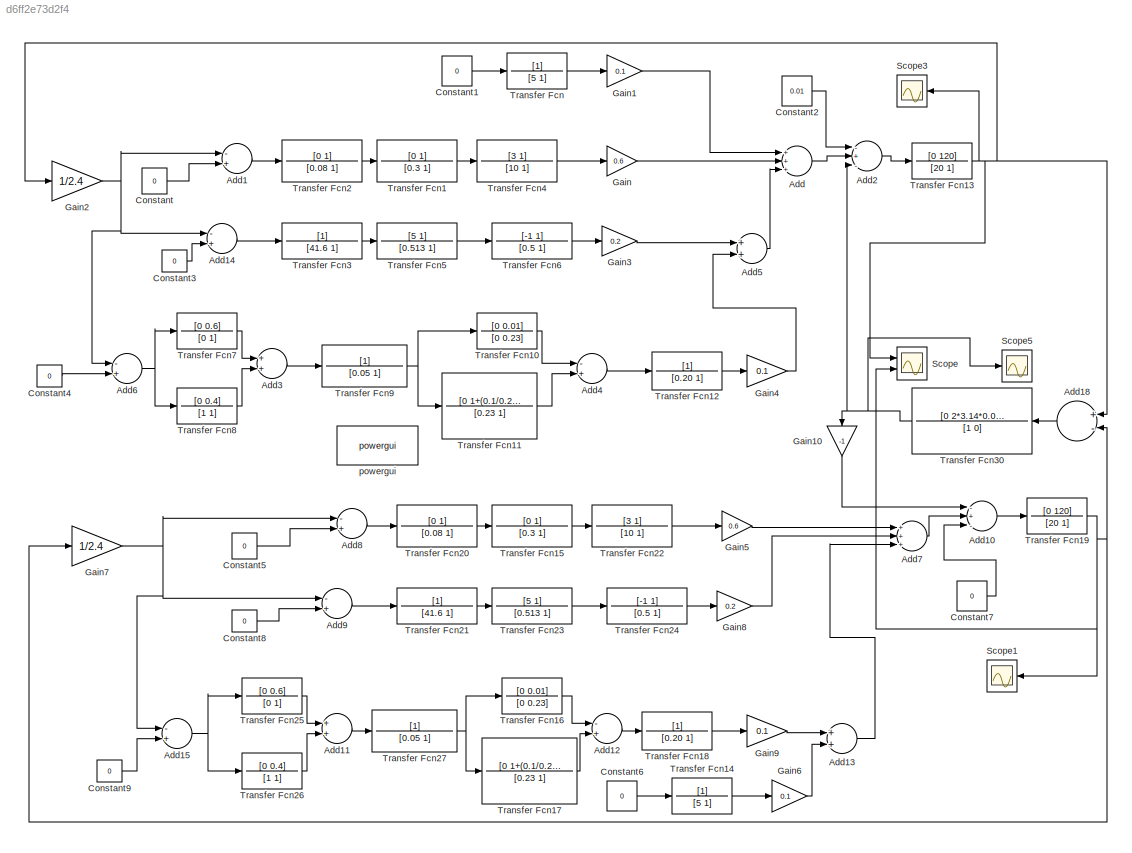
MODEL slx_d6ff2e73d2f4
KIND model
CONFIG AbsTol = auto
CONFIG EnableMultiTasking = off
CONFIG FixedStep = auto
CONFIG MaxStep = 1e-4
CONFIG MinStep = auto
CONFIG RelTol = 1e-3
CONFIG SampleTimeConstraint = Unconstrained
CONFIG Solver = VariableStepAuto
CONFIG SolverName = VariableStepAuto
CONFIG StartTime = 0.0
CONFIG StopTime = 40
BLOCK [Sum] Add
  InputSameDT = off
  Inputs = +++
  OutDataTypeStr = Inherit: Inherit via internal rule
  Ports = [3, 1]
  SaturateOnIntegerOverflow = off
BLOCK [Sum] Add1
  InputSameDT = off
  Inputs = -+
  OutDataTypeStr = Inherit: Inherit via internal rule
  Ports = [2, 1]
  SaturateOnIntegerOverflow = off
BLOCK [Sum] Add10
  InputSameDT = off
  Inputs = -+-
  OutDataTypeStr = Inherit: Inherit via internal rule
  Ports = [3, 1]
  SaturateOnIntegerOverflow = off
BLOCK [Sum] Add11
  InputSameDT = off
  OutDataTypeStr = Inherit: Inherit via internal rule
  Ports = [2, 1]
  SaturateOnIntegerOverflow = off
BLOCK [Sum] Add12
  InputSameDT = off
  Inputs = -+
  OutDataTypeStr = Inherit: Inherit via internal rule
  Ports = [2, 1]
  SaturateOnIntegerOverflow = off
BLOCK [Sum] Add13
  InputSameDT = off
  OutDataTypeStr = Inherit: Inherit via internal rule
  Ports = [2, 1]
  SaturateOnIntegerOverflow = off
BLOCK [Sum] Add14
  InputSameDT = off
  Inputs = -+
  OutDataTypeStr = Inherit: Inherit via internal rule
  Ports = [2, 1]
  SaturateOnIntegerOverflow = off
BLOCK [Sum] Add15
  InputSameDT = off
  Inputs = -+
  OutDataTypeStr = Inherit: Inherit via internal rule
  Ports = [2, 1]
  SaturateOnIntegerOverflow = off
BLOCK [Sum] Add18
  InputSameDT = off
  Inputs = +-
  OutDataTypeStr = Inherit: Inherit via internal rule
  Ports = [2, 1]
  SaturateOnIntegerOverflow = off
BLOCK [Sum] Add2
  InputSameDT = off
  Inputs = -+-
  OutDataTypeStr = Inherit: Inherit via internal rule
  Ports = [3, 1]
  SaturateOnIntegerOverflow = off
BLOCK [Sum] Add3
  InputSameDT = off
  OutDataTypeStr = Inherit: Inherit via internal rule
  Ports = [2, 1]
  SaturateOnIntegerOverflow = off
BLOCK [Sum] Add4
  InputSameDT = off
  Inputs = -+
  OutDataTypeStr = Inherit: Inherit via internal rule
  Ports = [2, 1]
  SaturateOnIntegerOverflow = off
BLOCK [Sum] Add5
  InputSameDT = off
  OutDataTypeStr = Inherit: Inherit via internal rule
  Ports = [2, 1]
  SaturateOnIntegerOverflow = off
BLOCK [Sum] Add6
  InputSameDT = off
  Inputs = -+
  OutDataTypeStr = Inherit: Inherit via internal rule
  Ports = [2, 1]
  SaturateOnIntegerOverflow = off
BLOCK [Sum] Add7
  InputSameDT = off
  Inputs = +++
  OutDataTypeStr = Inherit: Inherit via internal rule
  Ports = [3, 1]
  SaturateOnIntegerOverflow = off
BLOCK [Sum] Add8
  InputSameDT = off
  Inputs = -+
  OutDataTypeStr = Inherit: Inherit via internal rule
  Ports = [2, 1]
  SaturateOnIntegerOverflow = off
BLOCK [Sum] Add9
  InputSameDT = off
  Inputs = -+
  OutDataTypeStr = Inherit: Inherit via internal rule
  Ports = [2, 1]
  SaturateOnIntegerOverflow = off
BLOCK [Constant] Constant
  Value = 0
BLOCK [Constant] Constant1
  Value = 0
BLOCK [Constant] Constant2
  Value = 0.01
BLOCK [Constant] Constant3
  Value = 0
BLOCK [Constant] Constant4
  Value = 0
BLOCK [Constant] Constant5
  Value = 0
BLOCK [Constant] Constant6
  Value = 0
BLOCK [Constant] Constant7
  Value = 0
BLOCK [Constant] Constant8
  Value = 0
BLOCK [Constant] Constant9
  Value = 0
BLOCK [Gain] Gain
  Gain = 0.6
  OutDataTypeStr = Inherit: Inherit via internal rule
  ParamDataTypeStr = Inherit: Inherit via internal rule
  SaturateOnIntegerOverflow = off
BLOCK [Gain] Gain1
  Gain = 0.1
  OutDataTypeStr = Inherit: Inherit via internal rule
  ParamDataTypeStr = Inherit: Inherit via internal rule
  SaturateOnIntegerOverflow = off
BLOCK [Gain] Gain10
  Gain = -1
  OutDataTypeStr = Inherit: Inherit via internal rule
  ParamDataTypeStr = Inherit: Inherit via internal rule
  SaturateOnIntegerOverflow = off
BLOCK [Gain] Gain2
  Gain = 1/2.4
  OutDataTypeStr = Inherit: Inherit via internal rule
  ParamDataTypeStr = Inherit: Inherit via internal rule
  SaturateOnIntegerOverflow = off
BLOCK [Gain] Gain3
  Gain = 0.2
  OutDataTypeStr = Inherit: Inherit via internal rule
  ParamDataTypeStr = Inherit: Inherit via internal rule
  SaturateOnIntegerOverflow = off
BLOCK [Gain] Gain4
  Gain = 0.1
  OutDataTypeStr = Inherit: Inherit via internal rule
  ParamDataTypeStr = Inherit: Inherit via internal rule
  SaturateOnIntegerOverflow = off
BLOCK [Gain] Gain5
  Gain = 0.6
  OutDataTypeStr = Inherit: Inherit via internal rule
  ParamDataTypeStr = Inherit: Inherit via internal rule
  SaturateOnIntegerOverflow = off
BLOCK [Gain] Gain6
  Gain = 0.1
  OutDataTypeStr = Inherit: Inherit via internal rule
  ParamDataTypeStr = Inherit: Inherit via internal rule
  SaturateOnIntegerOverflow = off
BLOCK [Gain] Gain7
  Gain = 1/2.4
  OutDataTypeStr = Inherit: Inherit via internal rule
  ParamDataTypeStr = Inherit: Inherit via internal rule
  SaturateOnIntegerOverflow = off
BLOCK [Gain] Gain8
  Gain = 0.2
  OutDataTypeStr = Inherit: Inherit via internal rule
  ParamDataTypeStr = Inherit: Inherit via internal rule
  SaturateOnIntegerOverflow = off
BLOCK [Gain] Gain9
  Gain = 0.1
  OutDataTypeStr = Inherit: Inherit via internal rule
  ParamDataTypeStr = Inherit: Inherit via internal rule
  SaturateOnIntegerOverflow = off
BLOCK [Scope] Scope
  NumInputPorts = 2
  Ports = [2]
  ScopeSpecificationString = Simulink.scopes.TimeScopeBlockCfg('CurrentConfiguration', extmgr.ConfigurationSet(extmgr.Configuration('Core','General UI',true),extmgr.Configuration('Core','Source UI',true),extmgr.Configuration('Sources','WiredSimulink',true,'DataLoggingVariableName','ScopeData1'),extmgr.Configuration('Visuals','Time Domain',true,'SerializedDisplays',{struct('MinYLimReal','-0.04305','MaxYLimReal','0.00478','YLab...<+2053ch>
BLOCK [Scope] Scope1
  NumInputPorts = 1
  Ports = [1]
  ScopeSpecificationString = Simulink.scopes.TimeScopeBlockCfg('CurrentConfiguration', extmgr.ConfigurationSet(extmgr.Configuration('Core','General UI',true),extmgr.Configuration('Core','Source UI',true),extmgr.Configuration('Sources','WiredSimulink',true,'DataLoggingVariableName','ScopeData2'),extmgr.Configuration('Visuals','Time Domain',true,'SerializedDisplays',{struct('MinYLimReal','-0.13273','MaxYLimReal','1.19461','YLab...<+1373ch>
BLOCK [Scope] Scope3
  NumInputPorts = 1
  Ports = [1]
  ScopeSpecificationString = Simulink.scopes.TimeScopeBlockCfg('CurrentConfiguration', extmgr.ConfigurationSet(extmgr.Configuration('Core','General UI',true),extmgr.Configuration('Core','Source UI',true),extmgr.Configuration('Sources','WiredSimulink',true,'DataLoggingVariableName','ScopeData4'),extmgr.Configuration('Visuals','Time Domain',true,'SerializedDisplays',{struct('MinYLimReal','-0.16996','MaxYLimReal','1.16902','YLab...<+1373ch>
BLOCK [Scope] Scope5
  NumInputPorts = 1
  Ports = [1]
  ScopeSpecificationString = Simulink.scopes.TimeScopeBlockCfg('CurrentConfiguration', extmgr.ConfigurationSet(extmgr.Configuration('Core','General UI',true),extmgr.Configuration('Core','Source UI',true),extmgr.Configuration('Sources','WiredSimulink',true,'DataLoggingVariableName','ScopeData1'),extmgr.Configuration('Visuals','Time Domain',true,'SerializedDisplays',{struct('MinYLimReal','-0.00884','MaxYLimReal','0.00098','YLab...<+1373ch>
BLOCK [TransferFcn] Transfer Fcn
  Denominator = [5 1]
BLOCK [TransferFcn] Transfer Fcn1
  Denominator = [0.3 1]
  Numerator = [0 1]
BLOCK [TransferFcn] Transfer Fcn10
  Denominator = [0 0.23]
  Numerator = [0 0.01]
BLOCK [TransferFcn] Transfer Fcn11
  Denominator = [0.23 1]
  Numerator = [0 1+(0.1/0.23)]
BLOCK [TransferFcn] Transfer Fcn12
  Denominator = [0.20 1]
BLOCK [TransferFcn] Transfer Fcn13
  Denominator = [20 1]
  Numerator = [0 120]
BLOCK [TransferFcn] Transfer Fcn14
  Denominator = [5 1]
BLOCK [TransferFcn] Transfer Fcn15
  Denominator = [0.3 1]
  Numerator = [0 1]
BLOCK [TransferFcn] Transfer Fcn16
  Denominator = [0 0.23]
  Numerator = [0 0.01]
BLOCK [TransferFcn] Transfer Fcn17
  Denominator = [0.23 1]
  Numerator = [0 1+(0.1/0.23)]
BLOCK [TransferFcn] Transfer Fcn18
  Denominator = [0.20 1]
BLOCK [TransferFcn] Transfer Fcn19
  Denominator = [20 1]
  Numerator = [0 120]
BLOCK [TransferFcn] Transfer Fcn2
  Denominator = [0.08 1]
  Numerator = [0 1]
BLOCK [TransferFcn] Transfer Fcn20
  Denominator = [0.08 1]
  Numerator = [0 1]
BLOCK [TransferFcn] Transfer Fcn21
  Denominator = [41.6 1]
BLOCK [TransferFcn] Transfer Fcn22
  Denominator = [10 1]
  Numerator = [3 1]
BLOCK [TransferFcn] Transfer Fcn23
  Denominator = [0.513 1]
  Numerator = [5 1]
BLOCK [TransferFcn] Transfer Fcn24
  Denominator = [0.5 1]
  Numerator = [-1 1]
BLOCK [TransferFcn] Transfer Fcn25
  Denominator = [0 1]
  Numerator = [0 0.6]
BLOCK [TransferFcn] Transfer Fcn26
  Denominator = [1 1]
  Numerator = [0 0.4]
BLOCK [TransferFcn] Transfer Fcn27
  Denominator = [0.05 1]
BLOCK [TransferFcn] Transfer Fcn3
  Denominator = [41.6 1]
BLOCK [TransferFcn] Transfer Fcn30
  Denominator = [1 0]
  Numerator = [0 2*3.14*0.0433]
BLOCK [TransferFcn] Transfer Fcn4
  Denominator = [10 1]
  Numerator = [3 1]
BLOCK [TransferFcn] Transfer Fcn5
  Denominator = [0.513 1]
  Numerator = [5 1]
BLOCK [TransferFcn] Transfer Fcn6
  Denominator = [0.5 1]
  Numerator = [-1 1]
BLOCK [TransferFcn] Transfer Fcn7
  Denominator = [0 1]
  Numerator = [0 0.6]
BLOCK [TransferFcn] Transfer Fcn8
  Denominator = [1 1]
  Numerator = [0 0.4]
BLOCK [TransferFcn] Transfer Fcn9
  Denominator = [0.05 1]
BLOCK [Reference] powergui  REF=powerlib/powergui
  Ports = []
  Priority = 1
  SourceBlock = powerlib/powergui
  SourceProductBaseCode = PS
  SourceProductName = Simscape Power Systems
  SourceType = PSB option menu block
LINE Add10:1 -> Transfer Fcn19:1
LINE Add11:1 -> Transfer Fcn27:1
LINE Add12:1 -> Transfer Fcn18:1
LINE Add13:1 -> Add7:3
LINE Add14:1 -> Transfer Fcn3:1
NET Add15:1 -> Transfer Fcn25:1, Transfer Fcn26:1
LINE Add18:1 -> Transfer Fcn30:1
LINE Add1:1 -> Transfer Fcn2:1
LINE Add2:1 -> Transfer Fcn13:1
LINE Add3:1 -> Transfer Fcn9:1
LINE Add4:1 -> Transfer Fcn12:1
LINE Add5:1 -> Add:3
NET Add6:1 -> Transfer Fcn7:1, Transfer Fcn8:1
LINE Add7:1 -> Add10:2
LINE Add8:1 -> Transfer Fcn20:1
LINE Add9:1 -> Transfer Fcn21:1
LINE Add:1 -> Add2:2
LINE Constant1:1 -> Transfer Fcn:1
LINE Constant2:1 -> Add2:1
LINE Constant3:1 -> Add14:2
LINE Constant4:1 -> Add6:2
LINE Constant5:1 -> Add8:2
LINE Constant6:1 -> Transfer Fcn14:1
LINE Constant7:1 -> Add10:3
LINE Constant8:1 -> Add9:2
LINE Constant9:1 -> Add15:2
LINE Constant:1 -> Add1:2
LINE Gain10:1 -> Add10:1
LINE Gain1:1 -> Add:1
NET Gain2:1 -> Add14:1, Add1:1, Add6:1
LINE Gain3:1 -> Add5:1
LINE Gain4:1 -> Add5:2
LINE Gain5:1 -> Add7:1
LINE Gain6:1 -> Add13:2
NET Gain7:1 -> Add15:1, Add8:1, Add9:1
LINE Gain8:1 -> Add7:2
LINE Gain9:1 -> Add13:1
LINE Gain:1 -> Add:2
LINE Transfer Fcn10:1 -> Add4:1
LINE Transfer Fcn11:1 -> Add4:2
LINE Transfer Fcn12:1 -> Gain4:1
NET Transfer Fcn13:1 -> Add18:1, Gain2:1, Scope3:1, Scope:1
LINE Transfer Fcn14:1 -> Gain6:1
LINE Transfer Fcn15:1 -> Transfer Fcn22:1
LINE Transfer Fcn16:1 -> Add12:1
LINE Transfer Fcn17:1 -> Add12:2
LINE Transfer Fcn18:1 -> Gain9:1
NET Transfer Fcn19:1 -> Add18:2, Gain7:1, Scope1:1, Scope:2
LINE Transfer Fcn1:1 -> Transfer Fcn4:1
LINE Transfer Fcn20:1 -> Transfer Fcn15:1
LINE Transfer Fcn21:1 -> Transfer Fcn23:1
LINE Transfer Fcn22:1 -> Gain5:1
LINE Transfer Fcn23:1 -> Transfer Fcn24:1
LINE Transfer Fcn24:1 -> Gain8:1
LINE Transfer Fcn25:1 -> Add11:1
LINE Transfer Fcn26:1 -> Add11:2
NET Transfer Fcn27:1 -> Transfer Fcn16:1, Transfer Fcn17:1
LINE Transfer Fcn2:1 -> Transfer Fcn1:1
NET Transfer Fcn30:1 -> Add2:3, Gain10:1, Scope5:1
LINE Transfer Fcn3:1 -> Transfer Fcn5:1
LINE Transfer Fcn4:1 -> Gain:1
LINE Transfer Fcn5:1 -> Transfer Fcn6:1
LINE Transfer Fcn6:1 -> Gain3:1
LINE Transfer Fcn7:1 -> Add3:1
LINE Transfer Fcn8:1 -> Add3:2
NET Transfer Fcn9:1 -> Transfer Fcn10:1, Transfer Fcn11:1
LINE Transfer Fcn:1 -> Gain1:1
note: NET lines group one-source signal fan-out (src -> all destinations, sorted); 1:1 wires keep LINE
